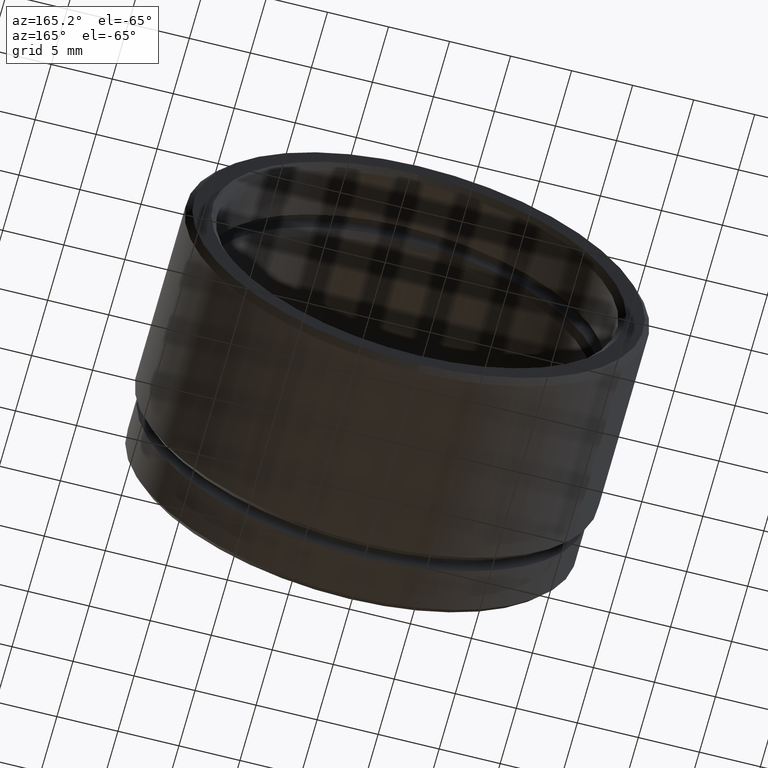
[diagram: clean part render]
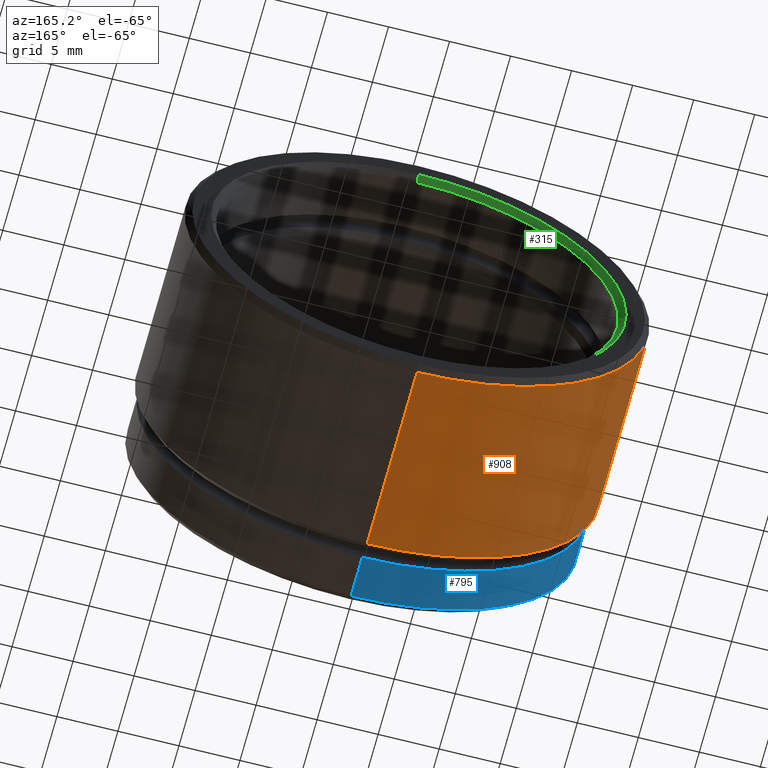
[diagram: same view with three faces highlighted in distinct colors, each labeled with its STEP entity id]
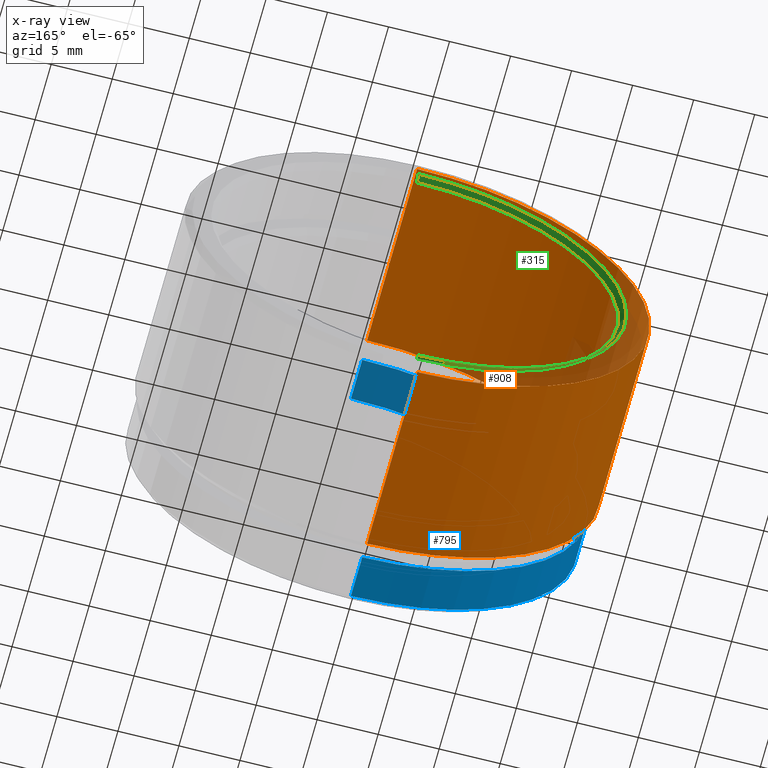
[diagram: x-ray of the same camera — body ghosted, the three highlighted faces saturated]
A machine part, auxiliary view with three faces highlighted in distinct colors.
The next image is the same camera in x-ray (body ghosted, the three faces saturated) — at least one of them is partly hidden behind the body in this view.
Their STEP definitions:

[orange] entity #908 — the highlighted cylindrical surface (partial cylindrical patch) has radius 19.05 mm, axis along (-0, -1, -0).
#47 = VECTOR ( 'NONE', #487, 1000.000000000000000 ) ;
#49 = EDGE_CURVE ( 'NONE', #81, #526, #597, .T. ) ;
#61 = EDGE_CURVE ( 'NONE', #526, #136, #1003, .T. ) ;
#67 = CARTESIAN_POINT ( 'NONE',  ( 0.0000000000000000000, 5.499999999999999100, 19.05000000000000100 ) ) ;
#76 = EDGE_CURVE ( 'NONE', #81, #807, #945, .T. ) ;
#81 = VERTEX_POINT ( 'NONE', #523 ) ;
#136 = VERTEX_POINT ( 'NONE', #327 ) ;
#169 = EDGE_CURVE ( 'NONE', #807, #136, #994, .T. ) ;
#327 = CARTESIAN_POINT ( 'NONE',  ( 2.332952152375707600E-015, 5.499999999999999100, -19.05000000000000100 ) ) ;
#342 = DIRECTION ( 'NONE',  ( -0.0000000000000000000, -1.000000000000000000, -0.0000000000000000000 ) ) ;
#393 = DIRECTION ( 'NONE',  ( 0.0000000000000000000, 0.0000000000000000000, -1.000000000000000000 ) ) ;
#400 = DIRECTION ( 'NONE',  ( -0.0000000000000000000, -1.000000000000000000, -0.0000000000000000000 ) ) ;
#412 = AXIS2_PLACEMENT_3D ( 'NONE', #856, #505, #577 ) ;
#475 = FACE_OUTER_BOUND ( 'NONE', #900, .T. ) ;
#487 = DIRECTION ( 'NONE',  ( -0.0000000000000000000, -1.000000000000000000, -0.0000000000000000000 ) ) ;
#505 = DIRECTION ( 'NONE',  ( -0.0000000000000000000, -1.000000000000000000, -0.0000000000000000000 ) ) ;
#510 = CARTESIAN_POINT ( 'NONE',  ( 2.332952152375708000E-015, 0.0000000000000000000, 19.05000000000000100 ) ) ;
#523 = CARTESIAN_POINT ( 'NONE',  ( 2.332952152375708000E-015, 21.00000000000000000, 19.05000000000000100 ) ) ;
#526 = VERTEX_POINT ( 'NONE', #648 ) ;
#541 = ORIENTED_EDGE ( 'NONE', *, *, #76, .F. ) ;
#544 = AXIS2_PLACEMENT_3D ( 'NONE', #944, #342, #932 ) ;
#577 = DIRECTION ( 'NONE',  ( 0.0000000000000000000, 0.0000000000000000000, -1.000000000000000000 ) ) ;
#597 = CIRCLE ( 'NONE', #412, 19.05000000000000100 ) ;
#648 = CARTESIAN_POINT ( 'NONE',  ( 0.0000000000000000000, 21.00000000000000000, -19.05000000000000100 ) ) ;
#707 = CARTESIAN_POINT ( 'NONE',  ( 0.0000000000000000000, 5.499999999999999100, 0.0000000000000000000 ) ) ;
#755 = DIRECTION ( 'NONE',  ( -0.0000000000000000000, -1.000000000000000000, -0.0000000000000000000 ) ) ;
#789 = AXIS2_PLACEMENT_3D ( 'NONE', #707, #400, #393 ) ;
#806 = ORIENTED_EDGE ( 'NONE', *, *, #169, .F. ) ;
#807 = VERTEX_POINT ( 'NONE', #67 ) ;
#814 = CARTESIAN_POINT ( 'NONE',  ( 0.0000000000000000000, 0.0000000000000000000, -19.05000000000000100 ) ) ;
#826 = VECTOR ( 'NONE', #755, 1000.000000000000000 ) ;
#856 = CARTESIAN_POINT ( 'NONE',  ( 0.0000000000000000000, 21.00000000000000000, 0.0000000000000000000 ) ) ;
#900 = EDGE_LOOP ( 'NONE', ( #541, #904, #956, #806 ) ) ;
#904 = ORIENTED_EDGE ( 'NONE', *, *, #49, .T. ) ;
#908 = ADVANCED_FACE ( 'NONE', ( #475 ), #922, .T. ) ;
#922 = CYLINDRICAL_SURFACE ( 'NONE', #544, 19.05000000000000100 ) ;
#932 = DIRECTION ( 'NONE',  ( 0.0000000000000000000, 0.0000000000000000000, -1.000000000000000000 ) ) ;
#944 = CARTESIAN_POINT ( 'NONE',  ( 0.0000000000000000000, 0.0000000000000000000, 0.0000000000000000000 ) ) ;
#945 = LINE ( 'NONE', #510, #47 ) ;
#956 = ORIENTED_EDGE ( 'NONE', *, *, #61, .T. ) ;
#994 = CIRCLE ( 'NONE', #789, 19.05000000000000100 ) ;
#1003 = LINE ( 'NONE', #814, #826 ) ;

[blue] entity #795 — the highlighted cylindrical surface (partial cylindrical patch) has radius 18.5 mm, axis along (-0, -1, -0).
#3 = CIRCLE ( 'NONE', #184, 18.50000000000000000 ) ;
#12 = EDGE_CURVE ( 'NONE', #997, #262, #1014, .T. ) ;
#20 = VECTOR ( 'NONE', #1009, 1000.000000000000000 ) ;
#23 = EDGE_CURVE ( 'NONE', #514, #830, #3, .T. ) ;
#77 = CARTESIAN_POINT ( 'NONE',  ( 2.265596578422603000E-015, 0.4999999999999979500, -18.50000000000000000 ) ) ;
#120 = DIRECTION ( 'NONE',  ( -0.0000000000000000000, -1.000000000000000000, -0.0000000000000000000 ) ) ;
#122 = CARTESIAN_POINT ( 'NONE',  ( 0.0000000000000000000, 4.000000000000000000, -18.50000000000000000 ) ) ;
#131 = DIRECTION ( 'NONE',  ( 0.0000000000000000000, 0.0000000000000000000, -1.000000000000000000 ) ) ;
#141 = DIRECTION ( 'NONE',  ( 0.0000000000000000000, 0.0000000000000000000, -1.000000000000000000 ) ) ;
#156 = CARTESIAN_POINT ( 'NONE',  ( 0.0000000000000000000, 0.0000000000000000000, 0.0000000000000000000 ) ) ;
#161 = AXIS2_PLACEMENT_3D ( 'NONE', #324, #637, #988 ) ;
#184 = AXIS2_PLACEMENT_3D ( 'NONE', #564, #586, #131 ) ;
#198 = EDGE_LOOP ( 'NONE', ( #706, #888, #868, #933 ) ) ;
#231 = DIRECTION ( 'NONE',  ( -0.0000000000000000000, -1.000000000000000000, -0.0000000000000000000 ) ) ;
#252 = LINE ( 'NONE', #1084, #20 ) ;
#262 = VERTEX_POINT ( 'NONE', #122 ) ;
#324 = CARTESIAN_POINT ( 'NONE',  ( 0.0000000000000000000, 4.000000000000000000, 0.0000000000000000000 ) ) ;
#477 = VECTOR ( 'NONE', #120, 1000.000000000000000 ) ;
#489 = CYLINDRICAL_SURFACE ( 'NONE', #566, 18.50000000000000000 ) ;
#502 = EDGE_CURVE ( 'NONE', #262, #830, #672, .T. ) ;
#514 = VERTEX_POINT ( 'NONE', #663 ) ;
#527 = EDGE_CURVE ( 'NONE', #997, #514, #252, .T. ) ;
#564 = CARTESIAN_POINT ( 'NONE',  ( 0.0000000000000000000, 0.4999999999999979500, 0.0000000000000000000 ) ) ;
#566 = AXIS2_PLACEMENT_3D ( 'NONE', #156, #231, #141 ) ;
#586 = DIRECTION ( 'NONE',  ( -0.0000000000000000000, -1.000000000000000000, -0.0000000000000000000 ) ) ;
#637 = DIRECTION ( 'NONE',  ( -0.0000000000000000000, -1.000000000000000000, -0.0000000000000000000 ) ) ;
#663 = CARTESIAN_POINT ( 'NONE',  ( 0.0000000000000000000, 0.4999999999999979500, 18.50000000000000000 ) ) ;
#672 = LINE ( 'NONE', #718, #477 ) ;
#706 = ORIENTED_EDGE ( 'NONE', *, *, #527, .F. ) ;
#718 = CARTESIAN_POINT ( 'NONE',  ( 0.0000000000000000000, 0.0000000000000000000, -18.50000000000000000 ) ) ;
#795 = ADVANCED_FACE ( 'NONE', ( #891 ), #489, .T. ) ;
#830 = VERTEX_POINT ( 'NONE', #77 ) ;
#868 = ORIENTED_EDGE ( 'NONE', *, *, #502, .T. ) ;
#887 = CARTESIAN_POINT ( 'NONE',  ( 2.265596578422603400E-015, 4.000000000000000000, 18.50000000000000000 ) ) ;
#888 = ORIENTED_EDGE ( 'NONE', *, *, #12, .T. ) ;
#891 = FACE_OUTER_BOUND ( 'NONE', #198, .T. ) ;
#933 = ORIENTED_EDGE ( 'NONE', *, *, #23, .F. ) ;
#988 = DIRECTION ( 'NONE',  ( 0.0000000000000000000, 0.0000000000000000000, -1.000000000000000000 ) ) ;
#997 = VERTEX_POINT ( 'NONE', #887 ) ;
#1009 = DIRECTION ( 'NONE',  ( -0.0000000000000000000, -1.000000000000000000, -0.0000000000000000000 ) ) ;
#1014 = CIRCLE ( 'NONE', #161, 18.50000000000000000 ) ;
#1084 = CARTESIAN_POINT ( 'NONE',  ( 2.265596578422603400E-015, 0.0000000000000000000, 18.50000000000000000 ) ) ;

[green] entity #315 — the highlighted conical surface has half-angle 45 deg.
#25 = DIRECTION ( 'NONE',  ( -0.0000000000000000000, -1.000000000000000000, -0.0000000000000000000 ) ) ;
#66 = CARTESIAN_POINT ( 'NONE',  ( 0.0000000000000000000, 21.50000000000000000, 0.0000000000000000000 ) ) ;
#78 = AXIS2_PLACEMENT_3D ( 'NONE', #476, #649, #588 ) ;
#99 = CARTESIAN_POINT ( 'NONE',  ( 2.020667218593133100E-015, 21.00000000000000400, 16.50000000000000000 ) ) ;
#195 = VERTEX_POINT ( 'NONE', #598 ) ;
#204 = VECTOR ( 'NONE', #1048, 1000.000000000000100 ) ;
#217 = DIRECTION ( 'NONE',  ( 0.0000000000000000000, 0.0000000000000000000, 1.000000000000000000 ) ) ;
#289 = DIRECTION ( 'NONE',  ( 0.0000000000000000000, 0.0000000000000000000, 1.000000000000000000 ) ) ;
#298 = DIRECTION ( 'NONE',  ( -0.0000000000000000000, 1.000000000000000000, -0.0000000000000000000 ) ) ;
#306 = CARTESIAN_POINT ( 'NONE',  ( 0.0000000000000000000, 21.00000000000000400, 0.0000000000000000000 ) ) ;
#315 = ADVANCED_FACE ( 'NONE', ( #780 ), #470, .F. ) ;
#317 = EDGE_CURVE ( 'NONE', #981, #963, #686, .T. ) ;
#318 = CARTESIAN_POINT ( 'NONE',  ( 0.0000000000000000000, 21.00000000000000400, -16.50000000000000000 ) ) ;
#427 = ORIENTED_EDGE ( 'NONE', *, *, #317, .F. ) ;
#469 = ORIENTED_EDGE ( 'NONE', *, *, #552, .F. ) ;
#470 = CONICAL_SURFACE ( 'NONE', #78, 16.99999999999999300, 0.7853981633974447300 ) ;
#474 = CARTESIAN_POINT ( 'NONE',  ( 2.081899558550499900E-015, 21.50000000000000000, -16.99999999999999300 ) ) ;
#476 = CARTESIAN_POINT ( 'NONE',  ( 0.0000000000000000000, 21.50000000000000000, 0.0000000000000000000 ) ) ;
#479 = VECTOR ( 'NONE', #573, 1000.000000000000100 ) ;
#552 = EDGE_CURVE ( 'NONE', #963, #195, #836, .T. ) ;
#573 = DIRECTION ( 'NONE',  ( 8.659560562354904500E-017, 0.7071067811865500200, -0.7071067811865451300 ) ) ;
#588 = DIRECTION ( 'NONE',  ( 0.0000000000000000000, 0.0000000000000000000, 1.000000000000000000 ) ) ;
#598 = CARTESIAN_POINT ( 'NONE',  ( 2.081899558550499900E-015, 21.50000000000000000, -16.99999999999999300 ) ) ;
#599 = CARTESIAN_POINT ( 'NONE',  ( 0.0000000000000000000, 21.50000000000000000, 16.99999999999999300 ) ) ;
#635 = EDGE_CURVE ( 'NONE', #1010, #195, #972, .T. ) ;
#649 = DIRECTION ( 'NONE',  ( -0.0000000000000000000, 1.000000000000000000, -0.0000000000000000000 ) ) ;
#686 = LINE ( 'NONE', #907, #204 ) ;
#695 = AXIS2_PLACEMENT_3D ( 'NONE', #66, #25, #217 ) ;
#722 = EDGE_CURVE ( 'NONE', #1010, #981, #940, .T. ) ;
#780 = FACE_OUTER_BOUND ( 'NONE', #860, .T. ) ;
#797 = AXIS2_PLACEMENT_3D ( 'NONE', #306, #298, #289 ) ;
#816 = ORIENTED_EDGE ( 'NONE', *, *, #635, .T. ) ;
#836 = CIRCLE ( 'NONE', #695, 16.99999999999999300 ) ;
#860 = EDGE_LOOP ( 'NONE', ( #1046, #816, #469, #427 ) ) ;
#907 = CARTESIAN_POINT ( 'NONE',  ( 0.0000000000000000000, 21.50000000000000000, 16.99999999999999300 ) ) ;
#940 = CIRCLE ( 'NONE', #797, 16.50000000000000000 ) ;
#963 = VERTEX_POINT ( 'NONE', #599 ) ;
#972 = LINE ( 'NONE', #474, #479 ) ;
#981 = VERTEX_POINT ( 'NONE', #99 ) ;
#1010 = VERTEX_POINT ( 'NONE', #318 ) ;
#1046 = ORIENTED_EDGE ( 'NONE', *, *, #722, .F. ) ;
#1048 = DIRECTION ( 'NONE',  ( 0.0000000000000000000, 0.7071067811865500200, 0.7071067811865451300 ) ) ;